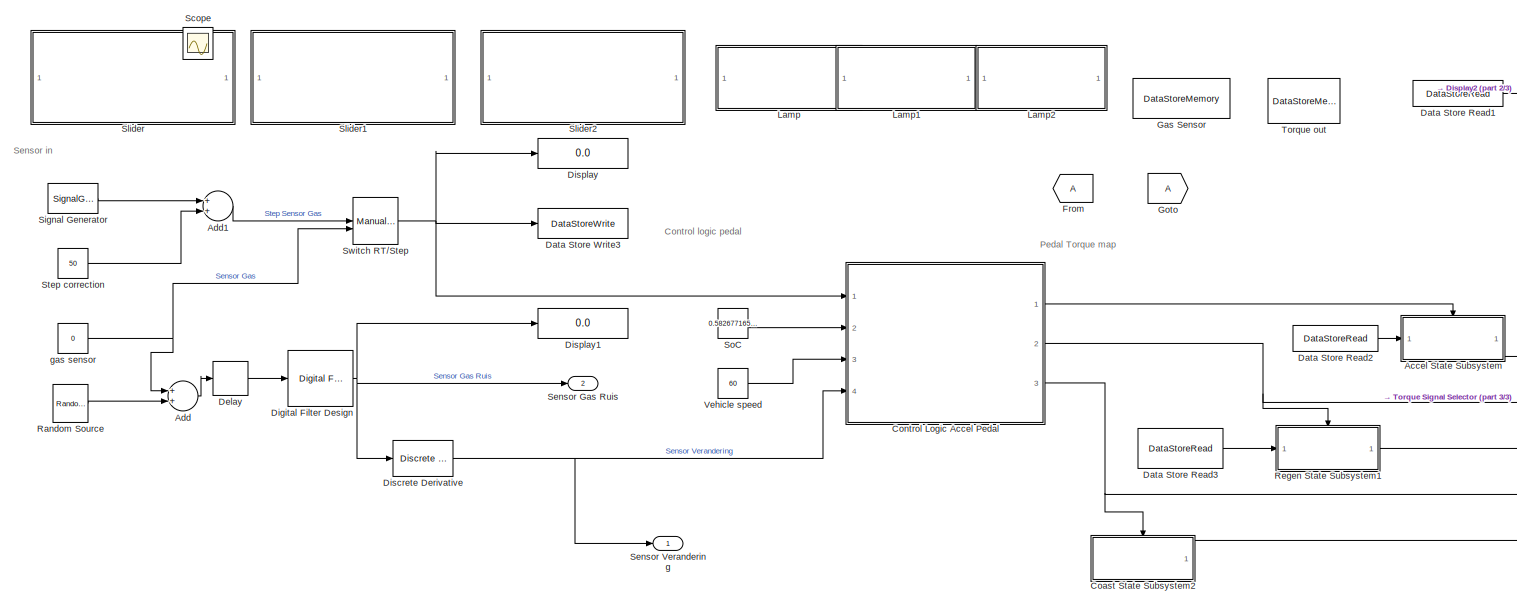
[diagram: root canvas - part 1/3, left side, full height]
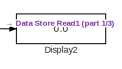
[diagram: root canvas - part 2/3, top right region]
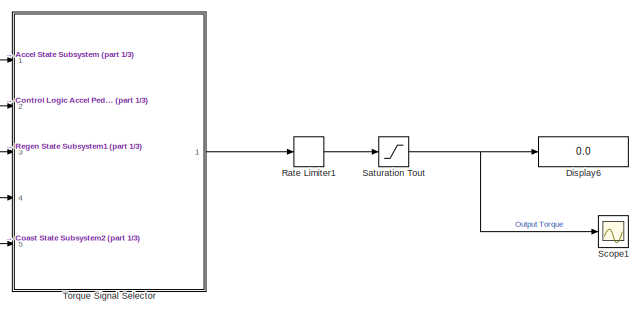
[diagram: root canvas - part 3/3, bottom right region]
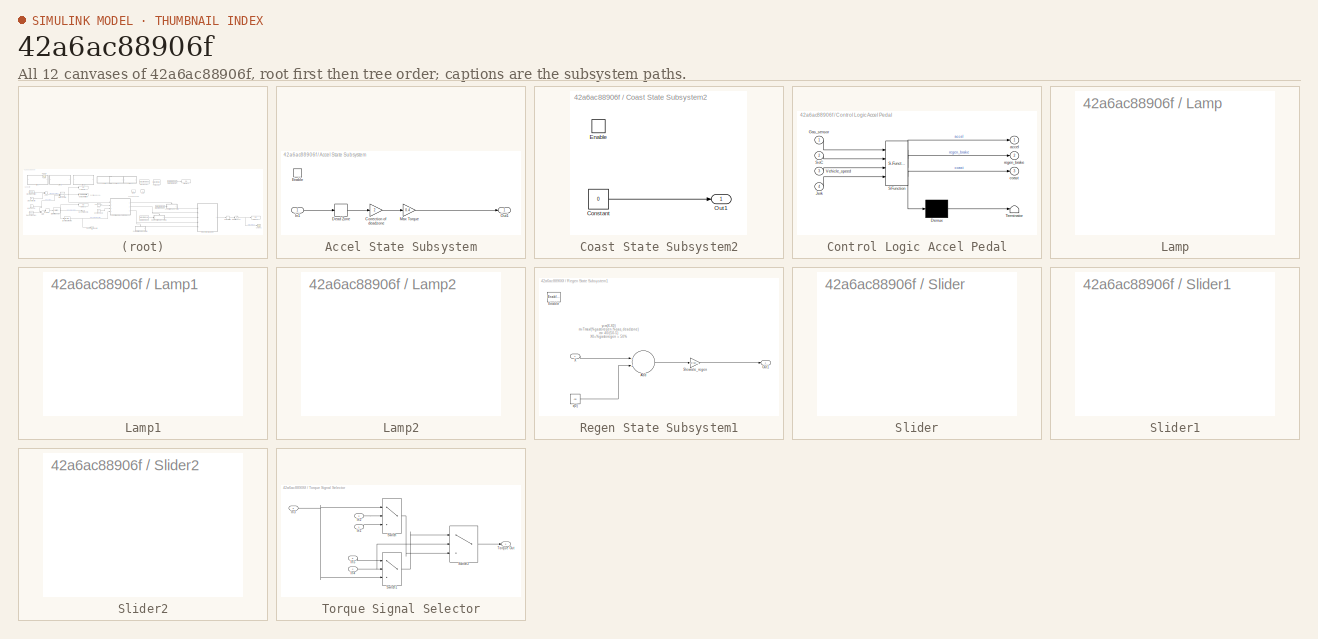
[diagram: thumbnail index - all 12 canvases of the model, root first then tree order]
MODEL slx_42a6ac88906f
KIND model
CONFIG AbsTol = auto
CONFIG FixedStep = 0.001
CONFIG MaxStep = auto
CONFIG MinStep = auto
CONFIG RelTol = 1e-3
CONFIG SampleTimeConstraint = Unconstrained
CONFIG Solver = ode4
CONFIG SolverMode = Auto
CONFIG SolverName = ode4
CONFIG StartTime = 0.0
CONFIG StopTime = 10
BLOCK [SubSystem] Accel State Subsystem
  Ports = [1, 1, 1]
  RequestExecContextInheritance = off
  TreatAsAtomicUnit = on
BLOCK [Gain] Accel State Subsystem/Correction of deadzone 
  Gain = 2
  OutDataTypeStr = Inherit: Inherit via internal rule
  ParamDataTypeStr = Inherit: Inherit via internal rule
  SaturateOnIntegerOverflow = off
BLOCK [DeadZone] Accel State Subsystem/Dead Zone
  LowerValue = 0
  UpperValue = 50
BLOCK [EnablePort] Accel State Subsystem/Enable
  Ports = []
BLOCK [Inport] Accel State Subsystem/In1
  IconDisplay = Port number
BLOCK [Gain] Accel State Subsystem/Max Torque
  Gain = 0.4
  OutDataTypeStr = Inherit: Inherit via internal rule
  ParamDataTypeStr = Inherit: Inherit via internal rule
  SaturateOnIntegerOverflow = off
BLOCK [Outport] Accel State Subsystem/Out1
  IconDisplay = Port number
BLOCK [Sum] Add
  InputSameDT = off
  OutDataTypeStr = Inherit: Inherit via internal rule
  Ports = [2, 1]
  SaturateOnIntegerOverflow = off
BLOCK [Sum] Add1
  InputSameDT = off
  OutDataTypeStr = Inherit: Inherit via internal rule
  Ports = [2, 1]
  SaturateOnIntegerOverflow = off
BLOCK [SubSystem] Coast State Subsystem2
  Ports = [0, 1, 1]
  RequestExecContextInheritance = off
  TreatAsAtomicUnit = on
BLOCK [Constant] Coast State Subsystem2/Constant
  Value = 0
BLOCK [EnablePort] Coast State Subsystem2/Enable
  Ports = []
BLOCK [Outport] Coast State Subsystem2/Out1
  IconDisplay = Port number
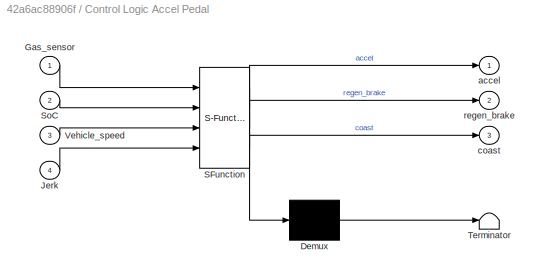
BLOCK [SubSystem] Control Logic Accel Pedal
  ErrorFcn = Stateflow.Translate.translate
  PermitHierarchicalResolution = ExplicitOnly
  Ports = [4, 3]
  RequestExecContextInheritance = off
  SFBlockType = Chart
  TreatAsAtomicUnit = on
BLOCK [Demux] Control Logic Accel Pedal/ Demux 
  Outputs = 1
  Ports = [1, 1]
BLOCK [S-Function] Control Logic Accel Pedal/ SFunction 
  EnableBusSupport = on
  FunctionName = sf_sfun
  PortCounts = [4 4]
  Ports = [4, 4]
  Tag = Stateflow S-Function RegenModelV1 3
BLOCK [Terminator] Control Logic Accel Pedal/ Terminator 
BLOCK [Inport] Control Logic Accel Pedal/Gas_sensor
  IconDisplay = Port number
BLOCK [Inport] Control Logic Accel Pedal/Jerk
  IconDisplay = Port number
  Port = 4
BLOCK [Inport] Control Logic Accel Pedal/SoC
  IconDisplay = Port number
  Port = 2
BLOCK [Inport] Control Logic Accel Pedal/Vehicle_speed
  IconDisplay = Port number
  Port = 3
BLOCK [Outport] Control Logic Accel Pedal/accel
  IconDisplay = Port number
BLOCK [Outport] Control Logic Accel Pedal/coast
  IconDisplay = Port number
  Port = 3
BLOCK [Outport] Control Logic Accel Pedal/regen_brake
  IconDisplay = Port number
  Port = 2
BLOCK [DataStoreRead] Data Store Read1
  DataStoreName = Gas_Sensor_mem
  Ports = [0, 1]
BLOCK [DataStoreRead] Data Store Read2
  DataStoreName = Gas_Sensor_mem
  Ports = [0, 1]
BLOCK [DataStoreRead] Data Store Read3
  DataStoreName = Gas_Sensor_mem
  Ports = [0, 1]
BLOCK [DataStoreWrite] Data Store Write3
  DataStoreName = Gas_Sensor_mem
  Ports = [1]
  SampleTime = 0.001
BLOCK [Delay] Delay
  InputPortMap = u0
  Ports = [1, 1]
  SampleTime = 0.001
BLOCK [Reference] Digital Filter Design  REF=dsparch4/Digital
Filter Design
  Ports = [1, 1]
  SourceBlock = dsparch4/Digital\nFilter Design
  SourceType = Digital Filter Design
  UserDataPersistent = on
  mwdsp_browser_bugfix_var = off
BLOCK [Reference] Discrete Derivative  REF=simulink/Discrete/Discrete Derivative
  DoSatur = off
  ICPrevScaledInput = 0.0
  InputProcessing = Inherited
  LockScale = off
  OutDataType = fixdt(1, 16)
  OutDataTypeStr = Inherit: Inherit via internal rule
  OutMax = []
  OutMin = []
  OutScaling = 2^-10
  OutputDataTypeScalingMode = Inherit via internal rule
  Ports = [1, 1]
  RndMeth = Floor
  SourceBlock = simulink/Discrete/Discrete Derivative
  SourceType = Discrete Derivative
  gainval = 1.0
BLOCK [Display] Display
  Decimation = 1
  Ports = [1]
BLOCK [Display] Display1
  Decimation = 1
  Ports = [1]
BLOCK [Display] Display2
  Decimation = 1
  Ports = [1]
BLOCK [Display] Display6
  Decimation = 1
  Ports = [1]
BLOCK [From] From
BLOCK [DataStoreMemory] Gas Sensor 
  DataStoreName = Gas_Sensor_mem
  ReadBeforeWriteMsg = warning
  WriteAfterReadMsg = warning
  WriteAfterWriteMsg = warning
BLOCK [Goto] Goto
BLOCK [SubSystem] Lamp
  DialogController = hmiCreateDDGDialog
  IsWebBlock = on
  MaskHideContents = on
  Ports = []
  RequestExecContextInheritance = off
BLOCK [SubSystem] Lamp1
  DialogController = hmiCreateDDGDialog
  IsWebBlock = on
  MaskHideContents = on
  Ports = []
  RequestExecContextInheritance = off
BLOCK [SubSystem] Lamp2
  DialogController = hmiCreateDDGDialog
  IsWebBlock = on
  MaskHideContents = on
  Ports = []
  RequestExecContextInheritance = off
BLOCK [Reference] Random Source  REF=dspsrcs4/Random
Source
  CltLength = 12
  DataType = Double
  IsInherit = off
  MaxVal = 1
  MeanVal = 0
  MinVal = -1
  NormMethod = Ziggurat
  OutComplex = Real
  Ports = [0, 1]
  RepMode = Not repeatable
  SampFrame = 1
  SampMode = Discrete
  SampTime = 0.001
  SourceBlock = dspsrcs4/Random\nSource
  SourceType = Random Source
  SrcType = Uniform
  UserDataPersistent = on
  VarVal = 1
  rawSeed = 1
BLOCK [RateLimiter] Rate Limiter1
  FallingSlewLimit = -100
  RisingSlewLimit = 100
  SampleTimeMode = inherited
BLOCK [SubSystem] Regen State Subsystem1
  Ports = [1, 1, 1]
  RequestExecContextInheritance = off
  TreatAsAtomicUnit = on
BLOCK [Sum] Regen State Subsystem1/Add
  InputSameDT = off
  OutDataTypeStr = Inherit: Inherit via internal rule
  Ports = [2, 1]
  SaturateOnIntegerOverflow = off
BLOCK [EnablePort] Regen State Subsystem1/Enable
  Ports = []
BLOCK [Outport] Regen State Subsystem1/Out1
  IconDisplay = Port number
BLOCK [Gain] Regen State Subsystem1/Slewrate_regen
  Gain = 40/(50-5)
  OutDataTypeStr = Inherit: Inherit via internal rule
  ParamDataTypeStr = Inherit: Inherit via internal rule
  SaturateOnIntegerOverflow = off
BLOCK [Inport] Regen State Subsystem1/X
  IconDisplay = Port number
BLOCK [Constant] Regen State Subsystem1/x(0)
  Value = -50
BLOCK [Saturate] Saturation Tout
  InputPortMap = u0
  LowerLimit = -40
  Ports = [1, 1]
  UpperLimit = 40
BLOCK [Scope] Scope
  DataFormat = StructureWithTime
  Floating = off
  IOType = viewer
  LimitDataPoints = off
  NumInputPorts = 1
  Ports = []
  ShowLegends = on
  YMax = 110
  YMin = -10
BLOCK [Scope] Scope1
  DataFormat = StructureWithTime
  Floating = off
  LimitDataPoints = off
  NumInputPorts = 1
  Ports = [1]
  SaveName = ScopeData1
  YMax = 43.62832
  YMin = -49.29204
BLOCK [Outport] Sensor Gas Ruis
  IconDisplay = Port number
  Port = 2
BLOCK [Outport] Sensor Verandering
  IconDisplay = Port number
BLOCK [SignalGenerator] Signal Generator
  Amplitude = 50
  Frequency = 0.25
  Ports = [0, 1]
  WaveForm = square
BLOCK [SubSystem] Slider
  Description = Replaced Block
  Ports = []
  RequestExecContextInheritance = off
BLOCK [SubSystem] Slider1
  Description = Replaced Block
  Ports = []
  RequestExecContextInheritance = off
BLOCK [SubSystem] Slider2
  Description = Replaced Block
  Ports = []
  RequestExecContextInheritance = off
BLOCK [Constant] SoC
  Value = 0.5826771653543307
BLOCK [Constant] Step correction
  Value = 50
BLOCK [ManualSwitch] Switch RT//Step
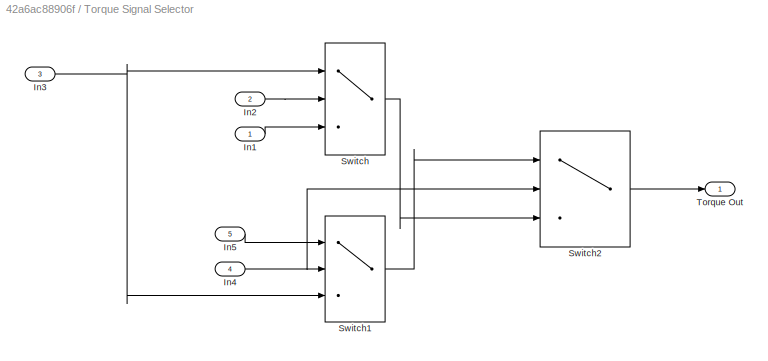
BLOCK [SubSystem] Torque Signal Selector
  Ports = [5, 1]
  RequestExecContextInheritance = off
BLOCK [Inport] Torque Signal Selector/In1
  IconDisplay = Port number
BLOCK [Inport] Torque Signal Selector/In2
  IconDisplay = Port number
  Port = 2
BLOCK [Inport] Torque Signal Selector/In3
  IconDisplay = Port number
  Port = 3
BLOCK [Inport] Torque Signal Selector/In4
  IconDisplay = Port number
  Port = 4
BLOCK [Inport] Torque Signal Selector/In5
  IconDisplay = Port number
  Port = 5
BLOCK [Switch] Torque Signal Selector/Switch
  Criteria = u2 > Threshold
  InputSameDT = off
  SaturateOnIntegerOverflow = off
BLOCK [Switch] Torque Signal Selector/Switch1
  Criteria = u2 > Threshold
  InputSameDT = off
  SaturateOnIntegerOverflow = off
BLOCK [Switch] Torque Signal Selector/Switch2
  Criteria = u2 > Threshold
  InputSameDT = off
  SaturateOnIntegerOverflow = off
BLOCK [Outport] Torque Signal Selector/Torque Out
  IconDisplay = Port number
BLOCK [DataStoreMemory] Torque out
  DataStoreName = Torque_out
  ReadBeforeWriteMsg = warning
  WriteAfterReadMsg = warning
  WriteAfterWriteMsg = warning
BLOCK [Constant] Vehicle speed
  Value = 60
BLOCK [Constant] gas sensor 
  Value = 0
ANNOTATION (root): Control logic pedal
ANNOTATION (root): Pedal Torque map
ANNOTATION (root): Sensor in
ANNOTATION Regen State Subsystem1: y=m(X-X0) m=Tmax/(%gastoregen-%gas_deadzone) m= 40/(50-5) X0=%gastoregen = 50%
LINE Accel State Subsystem/Correction of deadzone :1 -> Accel State Subsystem/Max Torque:1
LINE Accel State Subsystem/Dead Zone:1 -> Accel State Subsystem/Correction of deadzone :1
LINE Accel State Subsystem/In1:1 -> Accel State Subsystem/Dead Zone:1
LINE Accel State Subsystem/Max Torque:1 -> Accel State Subsystem/Out1:1
LINE Accel State Subsystem:1 -> Torque Signal Selector:1
LINE Add1:1 -> Switch RT//Step:1
LINE Add:1 -> Delay:1
LINE Coast State Subsystem2/Constant:1 -> Coast State Subsystem2/Out1:1
LINE Coast State Subsystem2:1 -> Torque Signal Selector:5
LINE Control Logic Accel Pedal:1 -> Accel State Subsystem:enable
NET Control Logic Accel Pedal:2 -> Regen State Subsystem1:enable, Torque Signal Selector:2
NET Control Logic Accel Pedal:3 -> Coast State Subsystem2:enable, Torque Signal Selector:4
LINE Data Store Read1:1 -> Display2:1
LINE Data Store Read2:1 -> Accel State Subsystem:1
LINE Data Store Read3:1 -> Regen State Subsystem1:1
LINE Delay:1 -> Digital Filter Design:1
NET Digital Filter Design:1 -> Discrete Derivative:1, Display1:1, Sensor Gas Ruis:1
NET Discrete Derivative:1 -> Control Logic Accel Pedal:4, Sensor Verandering:1
LINE Random Source:1 -> Add:2
LINE Rate Limiter1:1 -> Saturation Tout:1
LINE Regen State Subsystem1/Add:1 -> Regen State Subsystem1/Slewrate_regen:1
LINE Regen State Subsystem1/Slewrate_regen:1 -> Regen State Subsystem1/Out1:1
LINE Regen State Subsystem1/X:1 -> Regen State Subsystem1/Add:1
LINE Regen State Subsystem1/x(0):1 -> Regen State Subsystem1/Add:2
LINE Regen State Subsystem1:1 -> Torque Signal Selector:3
NET Saturation Tout:1 -> Display6:1, Scope1:1
LINE Signal Generator:1 -> Add1:1
LINE SoC:1 -> Control Logic Accel Pedal:2
LINE Step correction:1 -> Add1:2
NET Switch RT//Step:1 -> Control Logic Accel Pedal:1, Data Store Write3:1, Display:1
LINE Torque Signal Selector/In1:1 -> Torque Signal Selector/Switch:3
LINE Torque Signal Selector/In2:1 -> Torque Signal Selector/Switch:2
NET Torque Signal Selector/In3:1 -> Torque Signal Selector/Switch1:3, Torque Signal Selector/Switch:1
NET Torque Signal Selector/In4:1 -> Torque Signal Selector/Switch1:2, Torque Signal Selector/Switch2:2
LINE Torque Signal Selector/In5:1 -> Torque Signal Selector/Switch1:1
LINE Torque Signal Selector/Switch1:1 -> Torque Signal Selector/Switch2:1
LINE Torque Signal Selector/Switch2:1 -> Torque Signal Selector/Torque Out:1
LINE Torque Signal Selector/Switch:1 -> Torque Signal Selector/Switch2:3
LINE Torque Signal Selector:1 -> Rate Limiter1:1
LINE Vehicle speed:1 -> Control Logic Accel Pedal:3
NET gas sensor :1 -> Add:1, Switch RT//Step:2
note: NET lines group one-source signal fan-out (src -> all destinations, sorted); 1:1 wires keep LINE
CHART Control Logic Accel Pedal states=4 transitions=10
  STATE_LABEL 'Gas_pedal_logic'
  STATE_LABEL 'Coast\nentry: coast=1;\nentry: accel=0;\nentry: regen_brake=0;\nentry: BrakeFlag=0;'
  STATE_LABEL 'Accel\nentry: accel=1;\nentry:regen_brake=0;\nentry: coast =0;\n'
  STATE_LABEL 'RegenBrake\nentry: regen_brake=1;\nentry: accel=0;\nentry: coast=0;\nentry: BrakeFlag=0;\n'
  STATE_LABEL '[BrakeFlag==1 && (Vehicle_speed<10 || SoC>0.95)]'
  STATE_LABEL '[BrakeFlag==0 && Gas_sensor>50 && Jerk>3]'
  STATE_LABEL '{BrakeFlag=0;}'
  STATE_LABEL '[Vehicle_speed>10 && SoC<0.95]'
  STATE_LABEL '[SoC>0.95]'
  STATE_LABEL '[Vehicle_speed<10]'
  STATE_LABEL '[Gas_sensor>50]'
  STATE_LABEL '{BrakeFlag=1;}'
  STATE_LABEL '[BrakeFlag==0&& Gas_sensor>50]'
  STATE_LABEL '[BrakeFlag==1 &&Gas_sensor<50]'
  STATE_LABEL 'Coast\nentry: coast=1;\nentry: accel=0;\nentry: regen_brake=0;\nentry: BrakeFlag=0;'
  STATE_LABEL 'Accel\nentry: accel=1;\nentry:regen_brake=0;\nentry: coast =0;\n'
  STATE_LABEL 'RegenBrake\nentry: regen_brake=1;\nentry: accel=0;\nentry: coast=0;\nentry: BrakeFlag=0;\n'
